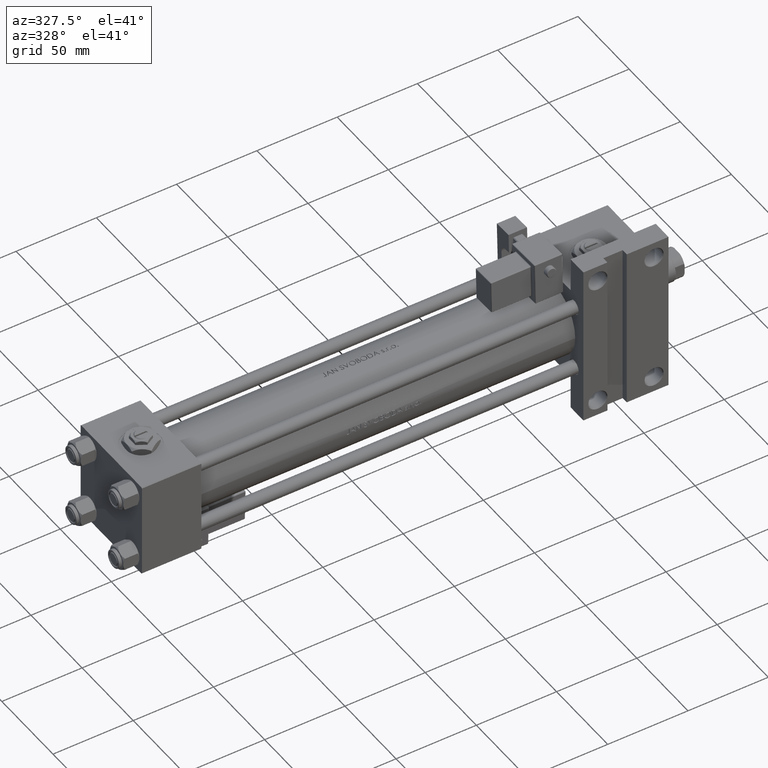
[diagram: clean part render]
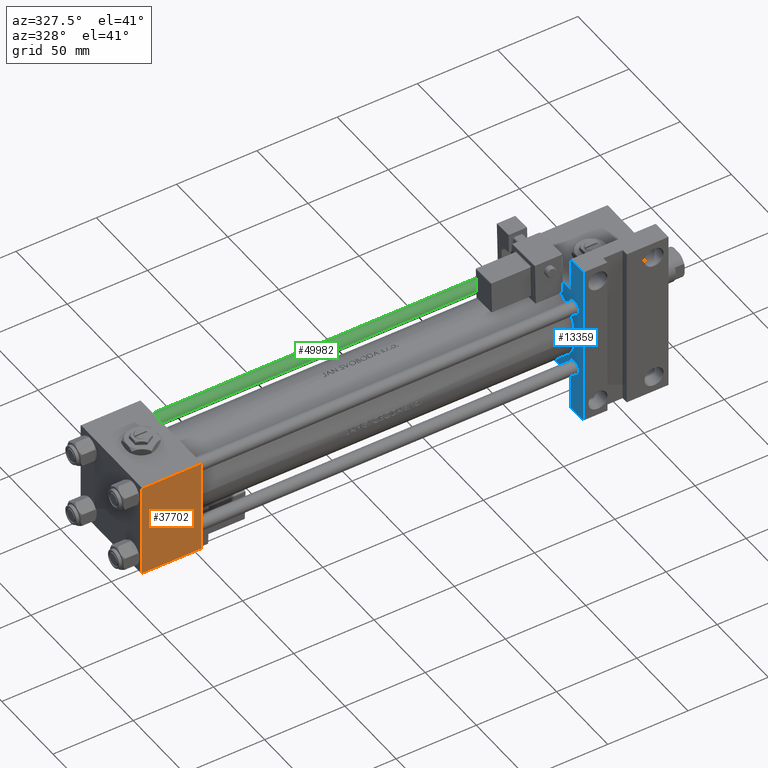
[diagram: same view with three faces highlighted in distinct colors, each labeled with its STEP entity id]
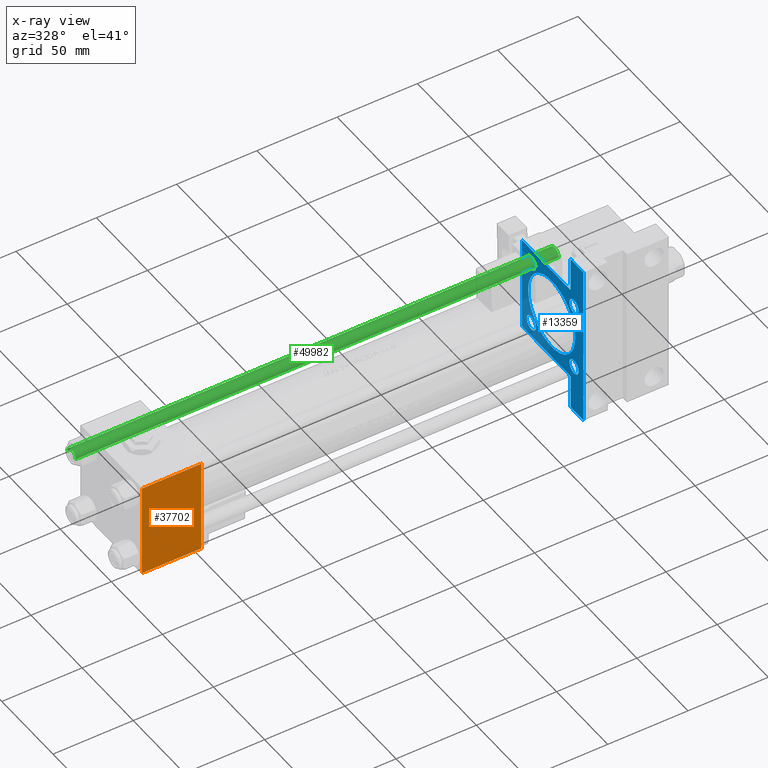
[diagram: x-ray of the same camera — body ghosted, the three highlighted faces saturated]
A machine part, auxiliary view with three faces highlighted in distinct colors.
The next image is the same camera in x-ray (body ghosted, the three faces saturated) — at least one of them is partly hidden behind the body in this view.
Their STEP definitions:

[orange] entity #37702 — the highlighted planar face has unit normal (0, -1, -0).
#604 = VERTEX_POINT ( 'NONE', #28135 ) ;
#1500 = LINE ( 'NONE', #41961, #51629 ) ;
#4009 = VECTOR ( 'NONE', #30903, 1000.000000000000000 ) ;
#4033 = VERTEX_POINT ( 'NONE', #29007 ) ;
#4712 = DIRECTION ( 'NONE',  ( 1.000000000000000000, 0.000000000000000000, 0.000000000000000000 ) ) ;
#5306 = EDGE_CURVE ( 'NONE', #604, #23929, #6239, .T. ) ;
#6239 = LINE ( 'NONE', #14579, #4009 ) ;
#6246 = ORIENTED_EDGE ( 'NONE', *, *, #43846, .F. ) ;
#9040 = EDGE_CURVE ( 'NONE', #34603, #4033, #25114, .T. ) ;
#13589 = VECTOR ( 'NONE', #4712, 1000.000000000000000 ) ;
#14579 = CARTESIAN_POINT ( 'NONE',  ( 0.000000000000000000, -29.50000000000001066, -30.00000000000000711 ) ) ;
#18311 = CARTESIAN_POINT ( 'NONE',  ( 37.00000000000000000, 29.99999999999999289, -30.00000000000000000 ) ) ;
#18593 = DIRECTION ( 'NONE',  ( 0.000000000000000000, 1.000000000000000000, 1.156482317317871725E-16 ) ) ;
#19847 = ORIENTED_EDGE ( 'NONE', *, *, #5306, .T. ) ;
#20610 = CARTESIAN_POINT ( 'NONE',  ( 0.000000000000000000, 29.99999999999999289, -30.00000000000000000 ) ) ;
#20998 = ORIENTED_EDGE ( 'NONE', *, *, #9040, .T. ) ;
#23399 = EDGE_CURVE ( 'NONE', #4033, #604, #1500, .T. ) ;
#23929 = VERTEX_POINT ( 'NONE', #34662 ) ;
#25114 = LINE ( 'NONE', #37913, #13589 ) ;
#28135 = CARTESIAN_POINT ( 'NONE',  ( 37.00000000000000000, -29.50000000000000000, -30.00000000000000711 ) ) ;
#29007 = CARTESIAN_POINT ( 'NONE',  ( 37.00000000000000000, 29.49999999999997868, -30.00000000000000000 ) ) ;
#30903 = DIRECTION ( 'NONE',  ( -1.000000000000000000, 0.000000000000000000, 0.000000000000000000 ) ) ;
#34122 = FACE_OUTER_BOUND ( 'NONE', #36450, .T. ) ;
#34467 = DIRECTION ( 'NONE',  ( 0.000000000000000000, -1.000000000000000000, -1.156482317317871725E-16 ) ) ;
#34603 = VERTEX_POINT ( 'NONE', #40188 ) ;
#34662 = CARTESIAN_POINT ( 'NONE',  ( 0.000000000000000000, -29.50000000000000000, -30.00000000000000711 ) ) ;
#36450 = EDGE_LOOP ( 'NONE', ( #6246, #20998, #52526, #19847 ) ) ;
#37693 = DIRECTION ( 'NONE',  ( 0.000000000000000000, -1.000000000000000000, -1.156482317317871725E-16 ) ) ;
#37702 = ADVANCED_FACE ( 'NONE', ( #34122 ), #50436, .T. ) ;
#37913 = CARTESIAN_POINT ( 'NONE',  ( 37.00000000000000000, 29.49999999999997868, -30.00000000000000000 ) ) ;
#38909 = DIRECTION ( 'NONE',  ( 0.000000000000000000, 1.156482317317871725E-16, -1.000000000000000000 ) ) ;
#40188 = CARTESIAN_POINT ( 'NONE',  ( 0.000000000000000000, 29.49999999999997868, -30.00000000000000000 ) ) ;
#41454 = LINE ( 'NONE', #20610, #42498 ) ;
#41961 = CARTESIAN_POINT ( 'NONE',  ( 37.00000000000000000, 29.99999999999999289, -30.00000000000000000 ) ) ;
#42498 = VECTOR ( 'NONE', #37693, 1000.000000000000000 ) ;
#43846 = EDGE_CURVE ( 'NONE', #34603, #23929, #41454, .T. ) ;
#48019 = AXIS2_PLACEMENT_3D ( 'NONE', #18311, #38909, #18593 ) ;
#50436 = PLANE ( 'NONE',  #48019 ) ;
#51629 = VECTOR ( 'NONE', #34467, 1000.000000000000000 ) ;
#52526 = ORIENTED_EDGE ( 'NONE', *, *, #23399, .T. ) ;

[blue] entity #13359 — the highlighted planar face has unit normal (-1, 0, -0).
#851 = ORIENTED_EDGE ( 'NONE', *, *, #22336, .T. ) ;
#887 = CARTESIAN_POINT ( 'NONE',  ( 274.9999999999999432, -20.84999999999999076, 16.34999999999999787 ) ) ;
#1087 = AXIS2_PLACEMENT_3D ( 'NONE', #43513, #2783, #14875 ) ;
#1166 = CIRCLE ( 'NONE', #15772, 23.00000000000000000 ) ;
#2419 = LINE ( 'NONE', #23077, #21625 ) ;
#2508 = CARTESIAN_POINT ( 'NONE',  ( 274.9999999999999432, 20.84999999999999787, -20.85000000000000142 ) ) ;
#2526 = FACE_BOUND ( 'NONE', #34438, .T. ) ;
#2783 = DIRECTION ( 'NONE',  ( -1.000000000000000000, 0.000000000000000000, -0.000000000000000000 ) ) ;
#3327 = PLANE ( 'NONE',  #1087 ) ;
#4442 = VERTEX_POINT ( 'NONE', #45384 ) ;
#5074 = VERTEX_POINT ( 'NONE', #20261 ) ;
#5099 = VERTEX_POINT ( 'NONE', #32036 ) ;
#5450 = AXIS2_PLACEMENT_3D ( 'NONE', #2508, #31724, #43747 ) ;
#5582 = CARTESIAN_POINT ( 'NONE',  ( 274.9999999999999432, 30.00000000000000000, -17.49999999999998224 ) ) ;
#5846 = CARTESIAN_POINT ( 'NONE',  ( 274.9999999999999432, 51.49999999999996447, -17.49999999999999645 ) ) ;
#5867 = CARTESIAN_POINT ( 'NONE',  ( 274.9999999999999432, 20.84999999999999787, -25.35000000000000853 ) ) ;
#6417 = ORIENTED_EDGE ( 'NONE', *, *, #14269, .F. ) ;
#6882 = LINE ( 'NONE', #39559, #14567 ) ;
#6979 = AXIS2_PLACEMENT_3D ( 'NONE', #38777, #23268, #31303 ) ;
#7344 = DIRECTION ( 'NONE',  ( 1.000000000000000000, -0.000000000000000000, 0.000000000000000000 ) ) ;
#7502 = DIRECTION ( 'NONE',  ( 0.000000000000000000, 0.000000000000000000, 1.000000000000000000 ) ) ;
#7572 = VECTOR ( 'NONE', #24119, 1000.000000000000000 ) ;
#7649 = CARTESIAN_POINT ( 'NONE',  ( 274.9999999999999432, -20.84999999999999076, 25.35000000000001208 ) ) ;
#7805 = DIRECTION ( 'NONE',  ( 1.000000000000000000, -0.000000000000000000, 0.000000000000000000 ) ) ;
#7993 = VECTOR ( 'NONE', #13628, 1000.000000000000000 ) ;
#8230 = EDGE_CURVE ( 'NONE', #28778, #38330, #47277, .T. ) ;
#8299 = VECTOR ( 'NONE', #11236, 1000.000000000000000 ) ;
#8355 = LINE ( 'NONE', #29005, #27582 ) ;
#8679 = DIRECTION ( 'NONE',  ( 1.000000000000000000, -0.000000000000000000, 0.000000000000000000 ) ) ;
#9376 = VERTEX_POINT ( 'NONE', #887 ) ;
#9585 = LINE ( 'NONE', #29439, #7993 ) ;
#9620 = ORIENTED_EDGE ( 'NONE', *, *, #45027, .T. ) ;
#9626 = AXIS2_PLACEMENT_3D ( 'NONE', #23338, #15298, #7502 ) ;
#10757 = ORIENTED_EDGE ( 'NONE', *, *, #13161, .F. ) ;
#11108 = FACE_BOUND ( 'NONE', #22985, .T. ) ;
#11109 = ORIENTED_EDGE ( 'NONE', *, *, #48365, .T. ) ;
#11236 = DIRECTION ( 'NONE',  ( 0.000000000000000000, 0.7071067811865279218, -0.7071067811865671127 ) ) ;
#11251 = LINE ( 'NONE', #27605, #7572 ) ;
#11807 = EDGE_CURVE ( 'NONE', #23710, #9376, #26742, .T. ) ;
#11982 = EDGE_LOOP ( 'NONE', ( #46652, #13389 ) ) ;
#12050 = CARTESIAN_POINT ( 'NONE',  ( 274.9999999999999432, 20.84999999999999787, -16.34999999999999432 ) ) ;
#12186 = CARTESIAN_POINT ( 'NONE',  ( 274.9999999999999432, 30.00000000000000000, 30.00000000000000000 ) ) ;
#12303 = ORIENTED_EDGE ( 'NONE', *, *, #8230, .T. ) ;
#12315 = EDGE_CURVE ( 'NONE', #16792, #12805, #44672, .T. ) ;
#12805 = VERTEX_POINT ( 'NONE', #24621 ) ;
#13161 = EDGE_CURVE ( 'NONE', #29373, #29031, #16265, .T. ) ;
#13359 = ADVANCED_FACE ( 'NONE', ( #35217, #39237, #14613, #2526, #11108, #51536 ), #3327, .T. ) ;
#13389 = ORIENTED_EDGE ( 'NONE', *, *, #19966, .T. ) ;
#13497 = DIRECTION ( 'NONE',  ( 0.000000000000000000, 0.000000000000000000, 1.000000000000000000 ) ) ;
#13628 = DIRECTION ( 'NONE',  ( 0.000000000000000000, -1.000000000000000000, -1.156482317317871478E-16 ) ) ;
#13832 = EDGE_CURVE ( 'NONE', #46521, #24128, #21707, .T. ) ;
#14269 = EDGE_CURVE ( 'NONE', #40371, #22720, #9585, .T. ) ;
#14491 = CARTESIAN_POINT ( 'NONE',  ( 274.9999999999999432, 29.75000000000082778, 29.74999999999917577 ) ) ;
#14567 = VECTOR ( 'NONE', #15214, 1000.000000000000000 ) ;
#14613 = FACE_BOUND ( 'NONE', #30391, .T. ) ;
#14875 = DIRECTION ( 'NONE',  ( -0.000000000000000000, 0.000000000000000000, 1.000000000000000000 ) ) ;
#15214 = DIRECTION ( 'NONE',  ( 0.000000000000000000, -1.000000000000000000, -1.156482317317871478E-16 ) ) ;
#15298 = DIRECTION ( 'NONE',  ( 1.000000000000000000, -0.000000000000000000, 0.000000000000000000 ) ) ;
#15318 = CARTESIAN_POINT ( 'NONE',  ( 274.9999999999999432, -30.00000000000000000, 29.50000000000001776 ) ) ;
#15654 = VECTOR ( 'NONE', #24000, 1000.000000000000000 ) ;
#15772 = AXIS2_PLACEMENT_3D ( 'NONE', #40361, #36365, #45199 ) ;
#16033 = CARTESIAN_POINT ( 'NONE',  ( 274.9999999999999432, -51.50000000000002132, -29.99999999999999645 ) ) ;
#16265 = LINE ( 'NONE', #20819, #22510 ) ;
#16420 = CIRCLE ( 'NONE', #6979, 4.500000000000007105 ) ;
#16792 = VERTEX_POINT ( 'NONE', #42740 ) ;
#16793 = CARTESIAN_POINT ( 'NONE',  ( 274.9999999999999432, -20.84999999999999076, 20.85000000000000497 ) ) ;
#17245 = DIRECTION ( 'NONE',  ( 1.000000000000000000, -0.000000000000000000, 0.000000000000000000 ) ) ;
#17410 = AXIS2_PLACEMENT_3D ( 'NONE', #40753, #7805, #28456 ) ;
#17744 = CARTESIAN_POINT ( 'NONE',  ( 274.9999999999999432, -51.50000000000002132, -17.49999999999999645 ) ) ;
#17779 = DIRECTION ( 'NONE',  ( 1.000000000000000000, 0.000000000000000000, 0.000000000000000000 ) ) ;
#18799 = DIRECTION ( 'NONE',  ( 0.000000000000000000, 1.000000000000000000, 0.000000000000000000 ) ) ;
#19966 = EDGE_CURVE ( 'NONE', #9376, #23710, #16420, .T. ) ;
#20261 = CARTESIAN_POINT ( 'NONE',  ( 274.9999999999999432, 30.00000000000000000, 29.50000000000000000 ) ) ;
#20333 = CIRCLE ( 'NONE', #39110, 23.00000000000000000 ) ;
#20497 = CARTESIAN_POINT ( 'NONE',  ( 274.9999999999999432, 20.84999999999999787, 16.34999999999999432 ) ) ;
#20819 = CARTESIAN_POINT ( 'NONE',  ( 274.9999999999999432, -51.50000000000002132, -17.49999999999999645 ) ) ;
#20961 = DIRECTION ( 'NONE',  ( -0.000000000000000000, 0.7071067811865671127, 0.7071067811865279218 ) ) ;
#21037 = DIRECTION ( 'NONE',  ( 0.000000000000000000, 0.000000000000000000, 1.000000000000000000 ) ) ;
#21611 = EDGE_CURVE ( 'NONE', #25910, #36860, #48074, .T. ) ;
#21625 = VECTOR ( 'NONE', #18799, 1000.000000000000000 ) ;
#21707 = CIRCLE ( 'NONE', #17410, 4.500000000000007105 ) ;
#21814 = CARTESIAN_POINT ( 'NONE',  ( 274.9999999999999432, -20.84999999999999076, -20.85000000000000497 ) ) ;
#22277 = EDGE_CURVE ( 'NONE', #29373, #36860, #2419, .T. ) ;
#22336 = EDGE_CURVE ( 'NONE', #44359, #22634, #32749, .T. ) ;
#22510 = VECTOR ( 'NONE', #45425, 1000.000000000000000 ) ;
#22634 = VERTEX_POINT ( 'NONE', #37421 ) ;
#22720 = VERTEX_POINT ( 'NONE', #52293 ) ;
#22850 = ORIENTED_EDGE ( 'NONE', *, *, #22277, .T. ) ;
#22985 = EDGE_LOOP ( 'NONE', ( #32053, #42638 ) ) ;
#23077 = CARTESIAN_POINT ( 'NONE',  ( 274.9999999999999432, -51.50000000000002132, -17.49999999999999645 ) ) ;
#23268 = DIRECTION ( 'NONE',  ( 1.000000000000000000, -0.000000000000000000, 0.000000000000000000 ) ) ;
#23338 = CARTESIAN_POINT ( 'NONE',  ( 274.9999999999999432, 20.84999999999999787, 20.85000000000000142 ) ) ;
#23710 = VERTEX_POINT ( 'NONE', #7649 ) ;
#23713 = DIRECTION ( 'NONE',  ( 0.000000000000000000, 0.000000000000000000, 1.000000000000000000 ) ) ;
#24000 = DIRECTION ( 'NONE',  ( 0.000000000000000000, 0.000000000000000000, -1.000000000000000000 ) ) ;
#24119 = DIRECTION ( 'NONE',  ( 0.000000000000000000, 0.000000000000000000, -1.000000000000000000 ) ) ;
#24128 = VERTEX_POINT ( 'NONE', #5867 ) ;
#24276 = CIRCLE ( 'NONE', #28562, 4.500000000000007105 ) ;
#24621 = CARTESIAN_POINT ( 'NONE',  ( 274.9999999999999432, -20.84999999999999076, -16.34999999999999787 ) ) ;
#25910 = VERTEX_POINT ( 'NONE', #15318 ) ;
#26077 = CARTESIAN_POINT ( 'NONE',  ( 274.9999999999999432, -20.84999999999999076, -20.85000000000000497 ) ) ;
#26742 = CIRCLE ( 'NONE', #36974, 4.500000000000007105 ) ;
#26852 = CARTESIAN_POINT ( 'NONE',  ( 274.9999999999999432, 29.50000000000002487, 30.00000000000000000 ) ) ;
#27165 = AXIS2_PLACEMENT_3D ( 'NONE', #44034, #7344, #23713 ) ;
#27582 = VECTOR ( 'NONE', #20961, 1000.000000000000000 ) ;
#27605 = CARTESIAN_POINT ( 'NONE',  ( 274.9999999999999432, 51.49999999999996447, -17.49999999999999645 ) ) ;
#27917 = ORIENTED_EDGE ( 'NONE', *, *, #36957, .T. ) ;
#28456 = DIRECTION ( 'NONE',  ( 0.000000000000000000, 0.000000000000000000, 1.000000000000000000 ) ) ;
#28562 = AXIS2_PLACEMENT_3D ( 'NONE', #21814, #8679, #21037 ) ;
#28778 = VERTEX_POINT ( 'NONE', #5582 ) ;
#29005 = CARTESIAN_POINT ( 'NONE',  ( 274.9999999999999432, -29.74999999999917577, 29.75000000000082778 ) ) ;
#29031 = VERTEX_POINT ( 'NONE', #16033 ) ;
#29373 = VERTEX_POINT ( 'NONE', #17744 ) ;
#29439 = CARTESIAN_POINT ( 'NONE',  ( 274.9999999999999432, 30.00000000000000000, 30.00000000000000000 ) ) ;
#29830 = EDGE_LOOP ( 'NONE', ( #9620, #851 ) ) ;
#30391 = EDGE_LOOP ( 'NONE', ( #34685, #31722 ) ) ;
#31303 = DIRECTION ( 'NONE',  ( 0.000000000000000000, 0.000000000000000000, 1.000000000000000000 ) ) ;
#31722 = ORIENTED_EDGE ( 'NONE', *, *, #52021, .T. ) ;
#31724 = DIRECTION ( 'NONE',  ( 1.000000000000000000, -0.000000000000000000, 0.000000000000000000 ) ) ;
#32000 = EDGE_LOOP ( 'NONE', ( #6417, #41059, #36546, #12303, #38099, #11109, #10757, #22850, #38008, #27917 ) ) ;
#32026 = CARTESIAN_POINT ( 'NONE',  ( 274.9999999999999432, -30.00000000000000000, 29.99999999999999289 ) ) ;
#32036 = CARTESIAN_POINT ( 'NONE',  ( 274.9999999999999432, 51.49999999999996447, -29.99999999999999645 ) ) ;
#32053 = ORIENTED_EDGE ( 'NONE', *, *, #49859, .T. ) ;
#32749 = CIRCLE ( 'NONE', #9626, 4.500000000000007105 ) ;
#33127 = DIRECTION ( 'NONE',  ( 0.000000000000000000, 0.000000000000000000, 1.000000000000000000 ) ) ;
#33306 = ORIENTED_EDGE ( 'NONE', *, *, #49407, .T. ) ;
#34438 = EDGE_LOOP ( 'NONE', ( #33306, #50880 ) ) ;
#34685 = ORIENTED_EDGE ( 'NONE', *, *, #13832, .T. ) ;
#35217 = FACE_BOUND ( 'NONE', #11982, .T. ) ;
#35803 = VECTOR ( 'NONE', #51546, 1000.000000000000000 ) ;
#36365 = DIRECTION ( 'NONE',  ( 1.000000000000000000, 0.000000000000000000, 0.000000000000000000 ) ) ;
#36546 = ORIENTED_EDGE ( 'NONE', *, *, #37420, .T. ) ;
#36860 = VERTEX_POINT ( 'NONE', #43977 ) ;
#36957 = EDGE_CURVE ( 'NONE', #25910, #22720, #8355, .T. ) ;
#36974 = AXIS2_PLACEMENT_3D ( 'NONE', #16793, #44903, #33127 ) ;
#37082 = CARTESIAN_POINT ( 'NONE',  ( 274.9999999999999432, -1.224646799147354686E-16, 24.00000000000000000 ) ) ;
#37420 = EDGE_CURVE ( 'NONE', #5074, #28778, #47816, .T. ) ;
#37421 = CARTESIAN_POINT ( 'NONE',  ( 274.9999999999999432, 20.84999999999999787, 25.35000000000000853 ) ) ;
#38008 = ORIENTED_EDGE ( 'NONE', *, *, #21611, .F. ) ;
#38099 = ORIENTED_EDGE ( 'NONE', *, *, #47248, .T. ) ;
#38330 = VERTEX_POINT ( 'NONE', #5846 ) ;
#38777 = CARTESIAN_POINT ( 'NONE',  ( 274.9999999999999432, -20.84999999999999076, 20.85000000000000497 ) ) ;
#39110 = AXIS2_PLACEMENT_3D ( 'NONE', #39169, #17779, #51217 ) ;
#39169 = CARTESIAN_POINT ( 'NONE',  ( 274.9999999999999432, -1.224646799147354686E-16, 1.000000000000000888 ) ) ;
#39237 = FACE_BOUND ( 'NONE', #29830, .T. ) ;
#39559 = CARTESIAN_POINT ( 'NONE',  ( 274.9999999999999432, 30.00000000000000000, -29.99999999999999289 ) ) ;
#40361 = CARTESIAN_POINT ( 'NONE',  ( 274.9999999999999432, -1.224646799147354686E-16, 1.000000000000000888 ) ) ;
#40371 = VERTEX_POINT ( 'NONE', #26852 ) ;
#40753 = CARTESIAN_POINT ( 'NONE',  ( 274.9999999999999432, 20.84999999999999787, -20.85000000000000142 ) ) ;
#41059 = ORIENTED_EDGE ( 'NONE', *, *, #41364, .T. ) ;
#41364 = EDGE_CURVE ( 'NONE', #40371, #5074, #47930, .T. ) ;
#42091 = AXIS2_PLACEMENT_3D ( 'NONE', #26077, #17245, #13497 ) ;
#42538 = CIRCLE ( 'NONE', #27165, 4.500000000000007105 ) ;
#42638 = ORIENTED_EDGE ( 'NONE', *, *, #45330, .T. ) ;
#42740 = CARTESIAN_POINT ( 'NONE',  ( 274.9999999999999432, -20.84999999999999076, -25.35000000000001208 ) ) ;
#43513 = CARTESIAN_POINT ( 'NONE',  ( 274.9999999999999432, 0.000000000000000000, 0.000000000000000000 ) ) ;
#43726 = VECTOR ( 'NONE', #48069, 1000.000000000000000 ) ;
#43747 = DIRECTION ( 'NONE',  ( 0.000000000000000000, 0.000000000000000000, 1.000000000000000000 ) ) ;
#43977 = CARTESIAN_POINT ( 'NONE',  ( 274.9999999999999432, -30.00000000000000000, -17.49999999999999645 ) ) ;
#44034 = CARTESIAN_POINT ( 'NONE',  ( 274.9999999999999432, 20.84999999999999787, 20.85000000000000142 ) ) ;
#44359 = VERTEX_POINT ( 'NONE', #20497 ) ;
#44672 = CIRCLE ( 'NONE', #42091, 4.500000000000007105 ) ;
#44818 = CIRCLE ( 'NONE', #5450, 4.500000000000007105 ) ;
#44903 = DIRECTION ( 'NONE',  ( 1.000000000000000000, -0.000000000000000000, 0.000000000000000000 ) ) ;
#45027 = EDGE_CURVE ( 'NONE', #22634, #44359, #42538, .T. ) ;
#45199 = DIRECTION ( 'NONE',  ( 0.000000000000000000, 0.000000000000000000, -1.000000000000000000 ) ) ;
#45330 = EDGE_CURVE ( 'NONE', #4442, #50149, #20333, .T. ) ;
#45384 = CARTESIAN_POINT ( 'NONE',  ( 274.9999999999999432, 2.694222958124176809E-15, -22.00000000000000000 ) ) ;
#45425 = DIRECTION ( 'NONE',  ( 0.000000000000000000, 0.000000000000000000, -1.000000000000000000 ) ) ;
#46521 = VERTEX_POINT ( 'NONE', #12050 ) ;
#46652 = ORIENTED_EDGE ( 'NONE', *, *, #11807, .T. ) ;
#47248 = EDGE_CURVE ( 'NONE', #38330, #5099, #11251, .T. ) ;
#47277 = LINE ( 'NONE', #50755, #35803 ) ;
#47816 = LINE ( 'NONE', #12186, #43726 ) ;
#47930 = LINE ( 'NONE', #14491, #8299 ) ;
#48069 = DIRECTION ( 'NONE',  ( 0.000000000000000000, 0.000000000000000000, -1.000000000000000000 ) ) ;
#48074 = LINE ( 'NONE', #32026, #15654 ) ;
#48365 = EDGE_CURVE ( 'NONE', #5099, #29031, #6882, .T. ) ;
#49407 = EDGE_CURVE ( 'NONE', #12805, #16792, #24276, .T. ) ;
#49859 = EDGE_CURVE ( 'NONE', #50149, #4442, #1166, .T. ) ;
#50149 = VERTEX_POINT ( 'NONE', #37082 ) ;
#50755 = CARTESIAN_POINT ( 'NONE',  ( 274.9999999999999432, 51.49999999999996447, -17.49999999999999645 ) ) ;
#50880 = ORIENTED_EDGE ( 'NONE', *, *, #12315, .T. ) ;
#51217 = DIRECTION ( 'NONE',  ( 0.000000000000000000, 0.000000000000000000, -1.000000000000000000 ) ) ;
#51536 = FACE_OUTER_BOUND ( 'NONE', #32000, .T. ) ;
#51546 = DIRECTION ( 'NONE',  ( -0.000000000000000000, 1.000000000000000000, -0.000000000000000000 ) ) ;
#52021 = EDGE_CURVE ( 'NONE', #24128, #46521, #44818, .T. ) ;
#52293 = CARTESIAN_POINT ( 'NONE',  ( 274.9999999999999432, -29.50000000000000000, 29.99999999999999289 ) ) ;

[green] entity #49982 — the highlighted cylindrical surface (edge-blend (fillet) strip) has radius 4 mm, axis along (1, -0, 0).
#374 = ORIENTED_EDGE ( 'NONE', *, *, #43025, .F. ) ;
#924 = ORIENTED_EDGE ( 'NONE', *, *, #27342, .T. ) ;
#4311 = DIRECTION ( 'NONE',  ( 0.000000000000000000, 0.000000000000000000, -1.000000000000000000 ) ) ;
#7291 = CIRCLE ( 'NONE', #20179, 4.000000000000000000 ) ;
#9924 = CARTESIAN_POINT ( 'NONE',  ( -4.000000000000000000, 0.000000000000000000, 302.0000000000000000 ) ) ;
#10482 = EDGE_LOOP ( 'NONE', ( #374, #17588, #18956, #924 ) ) ;
#11322 = DIRECTION ( 'NONE',  ( 1.000000000000000000, 0.000000000000000000, 0.000000000000000000 ) ) ;
#11405 = AXIS2_PLACEMENT_3D ( 'NONE', #16393, #4311, #20691 ) ;
#13050 = CARTESIAN_POINT ( 'NONE',  ( 0.000000000000000000, 0.000000000000000000, 302.0000000000000000 ) ) ;
#13128 = CIRCLE ( 'NONE', #11405, 4.000000000000000000 ) ;
#13902 = EDGE_CURVE ( 'NONE', #14065, #20083, #13128, .T. ) ;
#14065 = VERTEX_POINT ( 'NONE', #15278 ) ;
#15278 = CARTESIAN_POINT ( 'NONE',  ( 4.000000000000000000, 4.898587196589412829E-16, 301.4999999999999432 ) ) ;
#15361 = CARTESIAN_POINT ( 'NONE',  ( 0.000000000000000000, 0.000000000000000000, 0.5000000000000559552 ) ) ;
#16393 = CARTESIAN_POINT ( 'NONE',  ( 0.000000000000000000, 0.000000000000000000, 301.4999999999999432 ) ) ;
#16662 = VERTEX_POINT ( 'NONE', #33671 ) ;
#16837 = VECTOR ( 'NONE', #22527, 1000.000000000000000 ) ;
#17588 = ORIENTED_EDGE ( 'NONE', *, *, #13902, .T. ) ;
#18119 = CYLINDRICAL_SURFACE ( 'NONE', #20913, 4.000000000000000000 ) ;
#18398 = VERTEX_POINT ( 'NONE', #25194 ) ;
#18956 = ORIENTED_EDGE ( 'NONE', *, *, #33012, .T. ) ;
#20083 = VERTEX_POINT ( 'NONE', #45714 ) ;
#20179 = AXIS2_PLACEMENT_3D ( 'NONE', #15361, #48011, #11322 ) ;
#20691 = DIRECTION ( 'NONE',  ( 1.000000000000000000, 0.000000000000000000, 0.000000000000000000 ) ) ;
#20913 = AXIS2_PLACEMENT_3D ( 'NONE', #13050, #34455, #29397 ) ;
#21114 = FACE_OUTER_BOUND ( 'NONE', #10482, .T. ) ;
#22527 = DIRECTION ( 'NONE',  ( -0.000000000000000000, -0.000000000000000000, -1.000000000000000000 ) ) ;
#25194 = CARTESIAN_POINT ( 'NONE',  ( -4.000000000000000000, 0.000000000000000000, 0.5000000000000559552 ) ) ;
#27249 = DIRECTION ( 'NONE',  ( -0.000000000000000000, -0.000000000000000000, -1.000000000000000000 ) ) ;
#27342 = EDGE_CURVE ( 'NONE', #18398, #16662, #7291, .T. ) ;
#27497 = CARTESIAN_POINT ( 'NONE',  ( 4.000000000000000000, 4.898587196589412829E-16, 302.0000000000000000 ) ) ;
#29397 = DIRECTION ( 'NONE',  ( -1.000000000000000000, 0.000000000000000000, 0.000000000000000000 ) ) ;
#31780 = LINE ( 'NONE', #27497, #41755 ) ;
#33012 = EDGE_CURVE ( 'NONE', #20083, #18398, #42847, .T. ) ;
#33671 = CARTESIAN_POINT ( 'NONE',  ( 4.000000000000000000, 4.898587196589412829E-16, 0.5000000000000559552 ) ) ;
#34455 = DIRECTION ( 'NONE',  ( -0.000000000000000000, -0.000000000000000000, -1.000000000000000000 ) ) ;
#41755 = VECTOR ( 'NONE', #27249, 1000.000000000000000 ) ;
#42847 = LINE ( 'NONE', #9924, #16837 ) ;
#43025 = EDGE_CURVE ( 'NONE', #14065, #16662, #31780, .T. ) ;
#45714 = CARTESIAN_POINT ( 'NONE',  ( -4.000000000000000000, 0.000000000000000000, 301.4999999999999432 ) ) ;
#48011 = DIRECTION ( 'NONE',  ( -0.000000000000000000, -0.000000000000000000, 1.000000000000000000 ) ) ;
#49982 = ADVANCED_FACE ( 'NONE', ( #21114 ), #18119, .T. ) ;